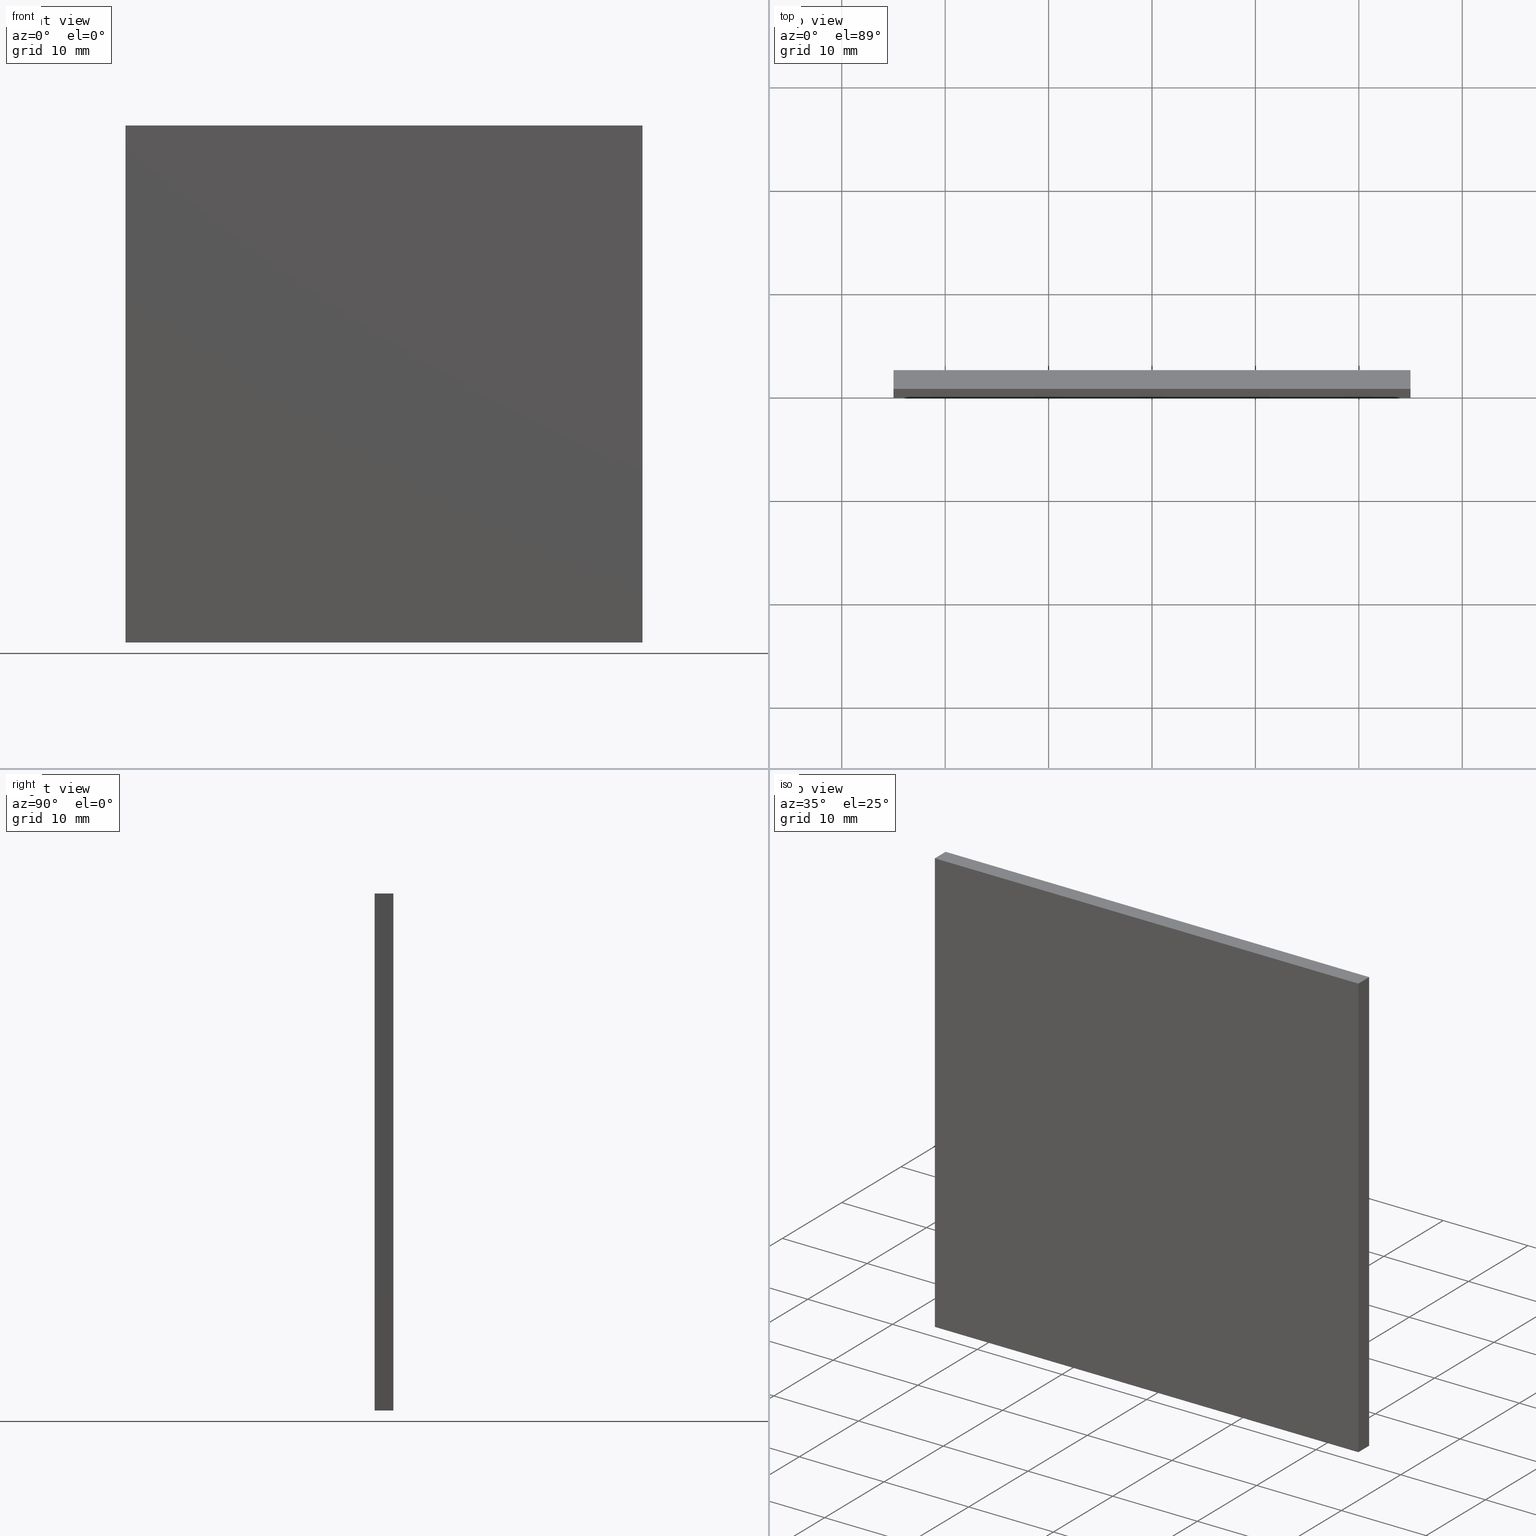
[diagram: canonical four-view strip — front | top / right | iso, engineering-drawing reading convention]
A machine part, canonical four-view strip (front | top / right | iso — engineering-drawing reading convention). The complete STEP part file that produces these views, byte-faithful:
ISO-10303-21;
HEADER;
FILE_DESCRIPTION (( 'STEP AP214' ),
    '1' );
FILE_NAME ('248616.STEP',
    '2019-08-06T06:41:59',
    ( 'user' ),
    ( '΢���й�' ),
    'SwSTEP 2.0',
    'SolidWorks 2016',
    '' );
FILE_SCHEMA (( 'AUTOMOTIVE_DESIGN' ));
ENDSEC;

DATA;
#1 = EDGE_CURVE ( 'NONE', #117, #189, #4, .T. ) ;
#2 = PRESENTATION_STYLE_ASSIGNMENT (( #57 ) ) ;
#3 = DIRECTION ( 'NONE',  ( 0.0000000000000000000, 0.0000000000000000000, -1.000000000000000000 ) ) ;
#4 = LINE ( 'NONE', #49, #132 ) ;
#5 = DIRECTION ( 'NONE',  ( -0.0000000000000000000, -1.000000000000000000, -0.0000000000000000000 ) ) ;
#6 = CARTESIAN_POINT ( 'NONE',  ( -24.99999999999998900, 1.820000000000000100, -25.00000000000000400 ) ) ;
#7 = FACE_OUTER_BOUND ( 'NONE', #15, .T. ) ;
#8 = FILL_AREA_STYLE ('',( #71 ) ) ;
#9 = EDGE_LOOP ( 'NONE', ( #43, #202, #24, #46 ) ) ;
#10 = SURFACE_STYLE_FILL_AREA ( #120 ) ;
#11 = CARTESIAN_POINT ( 'NONE',  ( -24.99999999999998900, 1.820000000000000100, 24.99999999999999600 ) ) ;
#12 = CARTESIAN_POINT ( 'NONE',  ( -24.99999999999998900, 0.0000000000000000000, -25.00000000000000400 ) ) ;
#13 =( NAMED_UNIT ( * ) PLANE_ANGLE_UNIT ( ) SI_UNIT ( $, .RADIAN. ) );
#14 = SURFACE_SIDE_STYLE ('',( #10 ) ) ;
#15 = EDGE_LOOP ( 'NONE', ( #134, #70, #195, #130 ) ) ;
#16 = AXIS2_PLACEMENT_3D ( 'NONE', #169, #185, #118 ) ;
#17 = PLANE ( 'NONE',  #141 ) ;
#18 = CARTESIAN_POINT ( 'NONE',  ( 25.00000000000001100, 0.0000000000000000000, 24.99999999999999600 ) ) ;
#19 = ORIENTED_EDGE ( 'NONE', *, *, #1, .T. ) ;
#20 = DIRECTION ( 'NONE',  ( 1.000000000000000000, -0.0000000000000000000, 0.0000000000000000000 ) ) ;
#21 = DIRECTION ( 'NONE',  ( 0.0000000000000000000, 0.0000000000000000000, 1.000000000000000000 ) ) ;
#22 = VECTOR ( 'NONE', #59, 1000.000000000000000 ) ;
#23 = PRODUCT_DEFINITION_FORMATION_WITH_SPECIFIED_SOURCE ( '�κ�', '', #152, .NOT_KNOWN. ) ;
#24 = ORIENTED_EDGE ( 'NONE', *, *, #139, .F. ) ;
#25 = CARTESIAN_POINT ( 'NONE',  ( 25.00000000000001100, 1.820000000000000100, 24.99999999999999600 ) ) ;
#26 = CARTESIAN_POINT ( 'NONE',  ( 25.00000000000001100, 1.820000000000000100, 24.99999999999999600 ) ) ;
#27 = VERTEX_POINT ( 'NONE', #67 ) ;
#28 = UNCERTAINTY_MEASURE_WITH_UNIT (LENGTH_MEASURE( 1.000000000000000100E-005 ), #61, 'distance_accuracy_value', 'NONE');
#29 =( GEOMETRIC_REPRESENTATION_CONTEXT ( 3 ) GLOBAL_UNCERTAINTY_ASSIGNED_CONTEXT ( ( #193 ) ) GLOBAL_UNIT_ASSIGNED_CONTEXT ( ( #119, #149, #98 ) ) REPRESENTATION_CONTEXT ( 'NONE', 'WORKASPACE' ) );
#30 = EDGE_CURVE ( 'NONE', #189, #74, #62, .T. ) ;
#31 = LINE ( 'NONE', #194, #50 ) ;
#32 = PRODUCT_RELATED_PRODUCT_CATEGORY ( 'part', '', ( #152 ) ) ;
#33 = ORIENTED_EDGE ( 'NONE', *, *, #160, .T. ) ;
#34 = CARTESIAN_POINT ( 'NONE',  ( 25.00000000000001100, 1.820000000000000100, -25.00000000000000400 ) ) ;
#35 = VECTOR ( 'NONE', #138, 1000.000000000000000 ) ;
#36 = CARTESIAN_POINT ( 'NONE',  ( 25.00000000000001100, 1.820000000000000100, 24.99999999999999600 ) ) ;
#37 = DIRECTION ( 'NONE',  ( -0.0000000000000000000, -1.000000000000000000, -0.0000000000000000000 ) ) ;
#38 =( GEOMETRIC_REPRESENTATION_CONTEXT ( 3 ) GLOBAL_UNCERTAINTY_ASSIGNED_CONTEXT ( ( #180 ) ) GLOBAL_UNIT_ASSIGNED_CONTEXT ( ( #97, #13, #55 ) ) REPRESENTATION_CONTEXT ( 'NONE', 'WORKASPACE' ) );
#39 = SURFACE_STYLE_USAGE ( .BOTH. , #147 ) ;
#40 = STYLED_ITEM ( 'NONE', ( #2 ), #159 ) ;
#41 = ORIENTED_EDGE ( 'NONE', *, *, #30, .F. ) ;
#42 = APPLICATION_CONTEXT ( 'automotive_design' ) ;
#43 = ORIENTED_EDGE ( 'NONE', *, *, #200, .F. ) ;
#44 = VECTOR ( 'NONE', #108, 1000.000000000000000 ) ;
#45 = VECTOR ( 'NONE', #184, 1000.000000000000000 ) ;
#46 = ORIENTED_EDGE ( 'NONE', *, *, #91, .F. ) ;
#47 = EDGE_CURVE ( 'NONE', #74, #145, #94, .T. ) ;
#48 = ADVANCED_FACE ( 'NONE', ( #85 ), #103, .F. ) ;
#49 = CARTESIAN_POINT ( 'NONE',  ( -24.99999999999998900, 1.820000000000000100, 24.99999999999999600 ) ) ;
#50 = VECTOR ( 'NONE', #37, 1000.000000000000000 ) ;
#51 = LINE ( 'NONE', #151, #45 ) ;
#52 = ORIENTED_EDGE ( 'NONE', *, *, #47, .T. ) ;
#53 = AXIS2_PLACEMENT_3D ( 'NONE', #154, #148, #197 ) ;
#54 = STYLED_ITEM ( 'NONE', ( #58 ), #196 ) ;
#55 =( NAMED_UNIT ( * ) SI_UNIT ( $, .STERADIAN. ) SOLID_ANGLE_UNIT ( ) );
#56 = DIRECTION ( 'NONE',  ( 0.0000000000000000000, 0.0000000000000000000, -1.000000000000000000 ) ) ;
#57 = SURFACE_STYLE_USAGE ( .BOTH. , #14 ) ;
#58 = PRESENTATION_STYLE_ASSIGNMENT (( #39 ) ) ;
#59 = DIRECTION ( 'NONE',  ( -0.0000000000000000000, -1.000000000000000000, -0.0000000000000000000 ) ) ;
#60 = LINE ( 'NONE', #6, #81 ) ;
#61 =( LENGTH_UNIT ( ) NAMED_UNIT ( * ) SI_UNIT ( .MILLI., .METRE. ) );
#62 = LINE ( 'NONE', #95, #142 ) ;
#63 = FILL_AREA_STYLE_COLOUR ( '', #80 ) ;
#64 = CARTESIAN_POINT ( 'NONE',  ( 25.00000000000001100, 0.0000000000000000000, 24.99999999999999600 ) ) ;
#65 = SURFACE_STYLE_FILL_AREA ( #8 ) ;
#66 = CARTESIAN_POINT ( 'NONE',  ( 25.00000000000001100, 1.820000000000000100, -25.00000000000000400 ) ) ;
#67 = CARTESIAN_POINT ( 'NONE',  ( -24.99999999999998900, 0.0000000000000000000, -25.00000000000000400 ) ) ;
#68 = ADVANCED_FACE ( 'NONE', ( #104 ), #144, .F. ) ;
#69 = COLOUR_RGB ( '',1.000000000000000000, 1.000000000000000000, 1.000000000000000000 ) ;
#70 = ORIENTED_EDGE ( 'NONE', *, *, #160, .F. ) ;
#71 = FILL_AREA_STYLE_COLOUR ( '', #69 ) ;
#72 = LINE ( 'NONE', #192, #44 ) ;
#73 = PRESENTATION_LAYER_ASSIGNMENT (  '', '', ( #40 ) ) ;
#74 = VERTEX_POINT ( 'NONE', #25 ) ;
#75 = CARTESIAN_POINT ( 'NONE',  ( -24.99999999999998900, 1.820000000000000100, 24.99999999999999600 ) ) ;
#76 = PRESENTATION_LAYER_ASSIGNMENT (  '', '', ( #54 ) ) ;
#77 = CARTESIAN_POINT ( 'NONE',  ( -24.99999999999998900, 1.820000000000000100, -25.00000000000000400 ) ) ;
#78 = CARTESIAN_POINT ( 'NONE',  ( -24.99999999999998900, 1.820000000000000100, -25.00000000000000400 ) ) ;
#79 = ORIENTED_EDGE ( 'NONE', *, *, #106, .F. ) ;
#80 = COLOUR_RGB ( '',1.000000000000000000, 1.000000000000000000, 1.000000000000000000 ) ;
#81 = VECTOR ( 'NONE', #191, 1000.000000000000000 ) ;
#82 = EDGE_LOOP ( 'NONE', ( #101, #79, #127, #158 ) ) ;
#83 = AXIS2_PLACEMENT_3D ( 'NONE', #78, #21, #86 ) ;
#84 = VECTOR ( 'NONE', #3, 1000.000000000000000 ) ;
#85 = FACE_OUTER_BOUND ( 'NONE', #82, .T. ) ;
#86 = DIRECTION ( 'NONE',  ( 1.000000000000000000, 0.0000000000000000000, -0.0000000000000000000 ) ) ;
#87 = DIRECTION ( 'NONE',  ( 0.0000000000000000000, 0.0000000000000000000, 1.000000000000000000 ) ) ;
#88 = PLANE ( 'NONE',  #83 ) ;
#89 = SHAPE_DEFINITION_REPRESENTATION ( #140, #196 ) ;
#90 = MECHANICAL_DESIGN_GEOMETRIC_PRESENTATION_REPRESENTATION (  '', ( #54 ), #161 ) ;
#91 = EDGE_CURVE ( 'NONE', #137, #27, #163, .T. ) ;
#92 = CARTESIAN_POINT ( 'NONE',  ( -24.99999999999998900, 1.820000000000000100, 24.99999999999999600 ) ) ;
#93 = ORIENTED_EDGE ( 'NONE', *, *, #110, .T. ) ;
#94 = LINE ( 'NONE', #26, #186 ) ;
#95 = CARTESIAN_POINT ( 'NONE',  ( -24.99999999999998900, 1.820000000000000100, 24.99999999999999600 ) ) ;
#96 = EDGE_LOOP ( 'NONE', ( #178, #107, #162, #33 ) ) ;
#97 =( LENGTH_UNIT ( ) NAMED_UNIT ( * ) SI_UNIT ( .MILLI., .METRE. ) );
#98 =( NAMED_UNIT ( * ) SI_UNIT ( $, .STERADIAN. ) SOLID_ANGLE_UNIT ( ) );
#99 = FACE_OUTER_BOUND ( 'NONE', #187, .T. ) ;
#100 = EDGE_LOOP ( 'NONE', ( #93, #155, #41, #181 ) ) ;
#101 = ORIENTED_EDGE ( 'NONE', *, *, #139, .T. ) ;
#102 = LINE ( 'NONE', #34, #175 ) ;
#103 = PLANE ( 'NONE',  #131 ) ;
#104 = FACE_OUTER_BOUND ( 'NONE', #100, .T. ) ;
#105 = APPLICATION_CONTEXT ( 'automotive_design' ) ;
#106 = EDGE_CURVE ( 'NONE', #189, #124, #157, .T. ) ;
#107 = ORIENTED_EDGE ( 'NONE', *, *, #122, .F. ) ;
#108 = DIRECTION ( 'NONE',  ( 1.000000000000000000, 0.0000000000000000000, 0.0000000000000000000 ) ) ;
#109 = CARTESIAN_POINT ( 'NONE',  ( 0.0000000000000000000, 1.820000000000000100, 0.0000000000000000000 ) ) ;
#110 = EDGE_CURVE ( 'NONE', #124, #143, #72, .T. ) ;
#111 = PRODUCT_DEFINITION ( 'δ֪', '', #23, #153 ) ;
#112 = ORIENTED_EDGE ( 'NONE', *, *, #115, .T. ) ;
#113 = ADVANCED_FACE ( 'NONE', ( #174 ), #88, .F. ) ;
#114 = AXIS2_PLACEMENT_3D ( 'NONE', #164, #87, #199 ) ;
#115 = EDGE_CURVE ( 'NONE', #145, #117, #51, .T. ) ;
#116 = DIRECTION ( 'NONE',  ( -1.000000000000000000, -0.0000000000000000000, -0.0000000000000000000 ) ) ;
#117 = VERTEX_POINT ( 'NONE', #77 ) ;
#118 = DIRECTION ( 'NONE',  ( 0.0000000000000000000, -0.0000000000000000000, -1.000000000000000000 ) ) ;
#119 =( LENGTH_UNIT ( ) NAMED_UNIT ( * ) SI_UNIT ( .MILLI., .METRE. ) );
#120 = FILL_AREA_STYLE ('',( #63 ) ) ;
#121 = DIRECTION ( 'NONE',  ( 0.0000000000000000000, 0.0000000000000000000, 1.000000000000000000 ) ) ;
#122 = EDGE_CURVE ( 'NONE', #117, #27, #60, .T. ) ;
#123 =( NAMED_UNIT ( * ) PLANE_ANGLE_UNIT ( ) SI_UNIT ( $, .RADIAN. ) );
#124 = VERTEX_POINT ( 'NONE', #167 ) ;
#125 = LINE ( 'NONE', #146, #35 ) ;
#126 =( NAMED_UNIT ( * ) SI_UNIT ( $, .STERADIAN. ) SOLID_ANGLE_UNIT ( ) );
#127 = ORIENTED_EDGE ( 'NONE', *, *, #1, .F. ) ;
#128 = ADVANCED_FACE ( 'NONE', ( #7 ), #17, .F. ) ;
#129 = CLOSED_SHELL ( 'NONE', ( #128, #113, #48, #68, #173, #188 ) ) ;
#130 = ORIENTED_EDGE ( 'NONE', *, *, #170, .T. ) ;
#131 = AXIS2_PLACEMENT_3D ( 'NONE', #92, #20, #183 ) ;
#132 = VECTOR ( 'NONE', #156, 1000.000000000000000 ) ;
#133 = DIRECTION ( 'NONE',  ( 1.000000000000000000, 0.0000000000000000000, 0.0000000000000000000 ) ) ;
#134 = ORIENTED_EDGE ( 'NONE', *, *, #200, .T. ) ;
#135 = CARTESIAN_POINT ( 'NONE',  ( 25.00000000000001100, 0.0000000000000000000, -25.00000000000000400 ) ) ;
#136 = DIRECTION ( 'NONE',  ( 0.0000000000000000000, -0.0000000000000000000, -1.000000000000000000 ) ) ;
#137 = VERTEX_POINT ( 'NONE', #135 ) ;
#138 = DIRECTION ( 'NONE',  ( -0.0000000000000000000, -0.0000000000000000000, 1.000000000000000000 ) ) ;
#139 = EDGE_CURVE ( 'NONE', #27, #124, #125, .T. ) ;
#140 = PRODUCT_DEFINITION_SHAPE ( 'NONE', 'NONE',  #111 ) ;
#141 = AXIS2_PLACEMENT_3D ( 'NONE', #36, #182, #121 ) ;
#142 = VECTOR ( 'NONE', #133, 1000.000000000000000 ) ;
#143 = VERTEX_POINT ( 'NONE', #18 ) ;
#144 = PLANE ( 'NONE',  #53 ) ;
#145 = VERTEX_POINT ( 'NONE', #66 ) ;
#146 = CARTESIAN_POINT ( 'NONE',  ( -24.99999999999998900, 0.0000000000000000000, 24.99999999999999600 ) ) ;
#147 = SURFACE_SIDE_STYLE ('',( #65 ) ) ;
#148 = DIRECTION ( 'NONE',  ( 0.0000000000000000000, 0.0000000000000000000, -1.000000000000000000 ) ) ;
#149 =( NAMED_UNIT ( * ) PLANE_ANGLE_UNIT ( ) SI_UNIT ( $, .RADIAN. ) );
#150 = DIRECTION ( 'NONE',  ( 0.0000000000000000000, -1.000000000000000000, 0.0000000000000000000 ) ) ;
#151 = CARTESIAN_POINT ( 'NONE',  ( -24.99999999999998900, 1.820000000000000100, -25.00000000000000400 ) ) ;
#152 = PRODUCT ( '248616', '248616', '', ( #165 ) ) ;
#153 = PRODUCT_DEFINITION_CONTEXT ( 'detailed design', #42, 'design' ) ;
#154 = CARTESIAN_POINT ( 'NONE',  ( -24.99999999999998900, 1.820000000000000100, 24.99999999999999600 ) ) ;
#155 = ORIENTED_EDGE ( 'NONE', *, *, #170, .F. ) ;
#156 = DIRECTION ( 'NONE',  ( -0.0000000000000000000, -0.0000000000000000000, 1.000000000000000000 ) ) ;
#157 = LINE ( 'NONE', #11, #22 ) ;
#158 = ORIENTED_EDGE ( 'NONE', *, *, #122, .T. ) ;
#159 = MANIFOLD_SOLID_BREP ( '͹̨-����1', #129 ) ;
#160 = EDGE_CURVE ( 'NONE', #145, #137, #102, .T. ) ;
#161 =( GEOMETRIC_REPRESENTATION_CONTEXT ( 3 ) GLOBAL_UNCERTAINTY_ASSIGNED_CONTEXT ( ( #28 ) ) GLOBAL_UNIT_ASSIGNED_CONTEXT ( ( #61, #123, #126 ) ) REPRESENTATION_CONTEXT ( 'NONE', 'WORKASPACE' ) );
#162 = ORIENTED_EDGE ( 'NONE', *, *, #115, .F. ) ;
#163 = LINE ( 'NONE', #12, #168 ) ;
#164 = CARTESIAN_POINT ( 'NONE',  ( 0.0000000000000000000, 0.0000000000000000000, 0.0000000000000000000 ) ) ;
#165 = PRODUCT_CONTEXT ( 'NONE', #105, 'mechanical' ) ;
#166 = PLANE ( 'NONE',  #198 ) ;
#167 = CARTESIAN_POINT ( 'NONE',  ( -24.99999999999998900, 0.0000000000000000000, 24.99999999999999600 ) ) ;
#168 = VECTOR ( 'NONE', #116, 1000.000000000000000 ) ;
#169 = CARTESIAN_POINT ( 'NONE',  ( 0.0000000000000000000, 0.0000000000000000000, 0.0000000000000000000 ) ) ;
#170 = EDGE_CURVE ( 'NONE', #74, #143, #31, .T. ) ;
#171 = ORIENTED_EDGE ( 'NONE', *, *, #30, .T. ) ;
#172 = LINE ( 'NONE', #64, #84 ) ;
#173 = ADVANCED_FACE ( 'NONE', ( #99 ), #166, .F. ) ;
#174 = FACE_OUTER_BOUND ( 'NONE', #96, .T. ) ;
#175 = VECTOR ( 'NONE', #5, 1000.000000000000000 ) ;
#176 = MECHANICAL_DESIGN_GEOMETRIC_PRESENTATION_REPRESENTATION (  '', ( #40 ), #29 ) ;
#177 = PLANE ( 'NONE',  #16 ) ;
#178 = ORIENTED_EDGE ( 'NONE', *, *, #91, .T. ) ;
#179 = APPLICATION_PROTOCOL_DEFINITION ( 'draft international standard', 'automotive_design', 1998, #105 ) ;
#180 = UNCERTAINTY_MEASURE_WITH_UNIT (LENGTH_MEASURE( 1.000000000000000100E-005 ), #97, 'distance_accuracy_value', 'NONE');
#181 = ORIENTED_EDGE ( 'NONE', *, *, #106, .T. ) ;
#182 = DIRECTION ( 'NONE',  ( -1.000000000000000000, 0.0000000000000000000, 0.0000000000000000000 ) ) ;
#183 = DIRECTION ( 'NONE',  ( 0.0000000000000000000, 0.0000000000000000000, -1.000000000000000000 ) ) ;
#184 = DIRECTION ( 'NONE',  ( -1.000000000000000000, -0.0000000000000000000, -0.0000000000000000000 ) ) ;
#185 = DIRECTION ( 'NONE',  ( 0.0000000000000000000, -1.000000000000000000, 0.0000000000000000000 ) ) ;
#186 = VECTOR ( 'NONE', #56, 1000.000000000000000 ) ;
#187 = EDGE_LOOP ( 'NONE', ( #52, #112, #19, #171 ) ) ;
#188 = ADVANCED_FACE ( 'NONE', ( #201 ), #177, .T. ) ;
#189 = VERTEX_POINT ( 'NONE', #75 ) ;
#190 = APPLICATION_PROTOCOL_DEFINITION ( 'draft international standard', 'automotive_design', 1998, #42 ) ;
#191 = DIRECTION ( 'NONE',  ( -0.0000000000000000000, -1.000000000000000000, -0.0000000000000000000 ) ) ;
#192 = CARTESIAN_POINT ( 'NONE',  ( -24.99999999999998900, 0.0000000000000000000, 24.99999999999999600 ) ) ;
#193 = UNCERTAINTY_MEASURE_WITH_UNIT (LENGTH_MEASURE( 1.000000000000000100E-005 ), #119, 'distance_accuracy_value', 'NONE');
#194 = CARTESIAN_POINT ( 'NONE',  ( 25.00000000000001100, 1.820000000000000100, 24.99999999999999600 ) ) ;
#195 = ORIENTED_EDGE ( 'NONE', *, *, #47, .F. ) ;
#196 = ADVANCED_BREP_SHAPE_REPRESENTATION ( '248616', ( #159, #114 ), #38 ) ;
#197 = DIRECTION ( 'NONE',  ( -1.000000000000000000, 0.0000000000000000000, -0.0000000000000000000 ) ) ;
#198 = AXIS2_PLACEMENT_3D ( 'NONE', #109, #150, #136 ) ;
#199 = DIRECTION ( 'NONE',  ( 1.000000000000000000, 0.0000000000000000000, 0.0000000000000000000 ) ) ;
#200 = EDGE_CURVE ( 'NONE', #143, #137, #172, .T. ) ;
#201 = FACE_OUTER_BOUND ( 'NONE', #9, .T. ) ;
#202 = ORIENTED_EDGE ( 'NONE', *, *, #110, .F. ) ;
ENDSEC;
END-ISO-10303-21;
